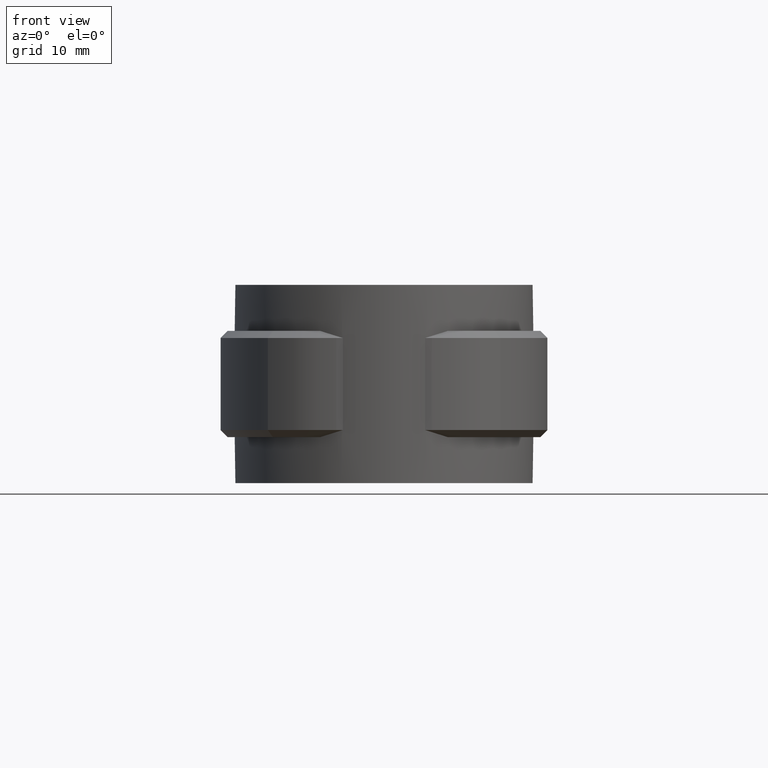
[diagram: clean part render]
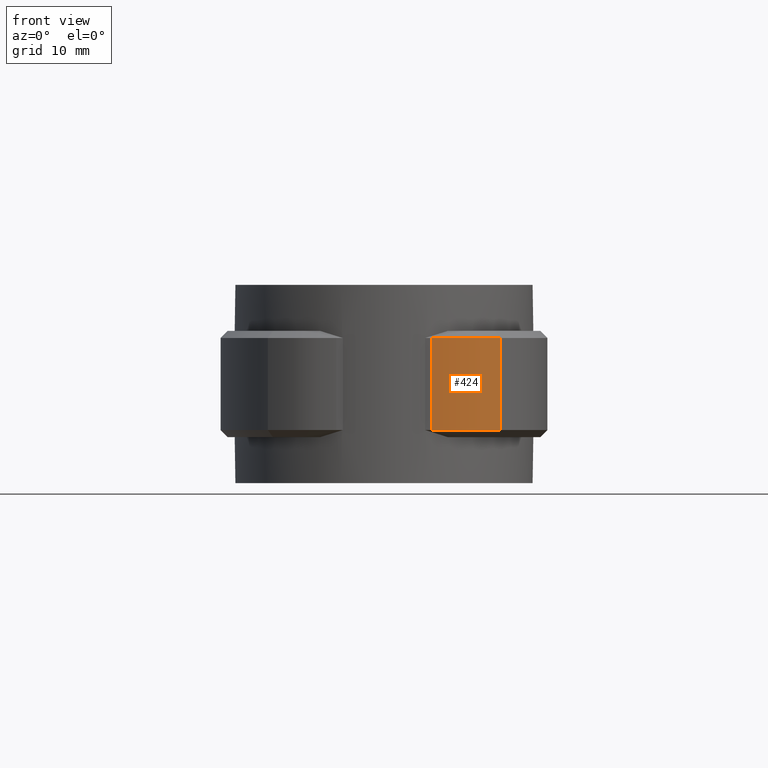
[diagram: same view with one face highlighted and labeled with its STEP entity id]
A machine part, front view. The second image highlights one B-rep face of the part: STEP entity #424.
In plain terms, the highlighted cylindrical surface (partial cylindrical patch) has radius 13.6 mm, axis along (0, 0, -1).
Its self-contained STEP definition (entity closure, byte-faithful):
#424 = ADVANCED_FACE( '', ( #740 ), #741, .T. );
#740 = FACE_OUTER_BOUND( '', #1538, .T. );
#741 = CYLINDRICAL_SURFACE( '', #1539, 13.6000000000000 );
#1538 = EDGE_LOOP( '', ( #3363, #3364, #3365, #3366 ) );
#1539 = AXIS2_PLACEMENT_3D( '', #3367, #3368, #3369 );
#3363 = ORIENTED_EDGE( '', *, *, #4329, .T. );
#3364 = ORIENTED_EDGE( '', *, *, #4327, .T. );
#3365 = ORIENTED_EDGE( '', *, *, #4330, .F. );
#3366 = ORIENTED_EDGE( '', *, *, #4318, .T. );
#3367 = CARTESIAN_POINT( '', ( 6.74778667416212, -6.68000000000001, -20.0000000000000 ) );
#3368 = DIRECTION( '', ( 0.000000000000000, 0.000000000000000, -1.00000000000000 ) );
#3369 = DIRECTION( '', ( 0.275275955036381, 0.961365252429485, 0.000000000000000 ) );
#4318 = EDGE_CURVE( '', #5055, #5059, #5061, .T. );
#4327 = EDGE_CURVE( '', #5070, #5065, #5073, .F. );
#4329 = EDGE_CURVE( '', #5059, #5070, #5075, .T. );
#4330 = EDGE_CURVE( '', #5055, #5065, #5076, .T. );
#5055 = VERTEX_POINT( '', #7562 );
#5059 = VERTEX_POINT( '', #7568 );
#5061 = CIRCLE( '', #7571, 13.6000000000000 );
#5065 = VERTEX_POINT( '', #7575 );
#5070 = VERTEX_POINT( '', #7582 );
#5073 = CIRCLE( '', #7586, 13.6000000000000 );
#5075 = LINE( '', #7588, #7589 );
#5076 = LINE( '', #7590, #7591 );
#7562 = CARTESIAN_POINT( '', ( 6.74778667416212, -20.2800000000000, -19.0000000000000 ) );
#7568 = CARTESIAN_POINT( '', ( 16.4128629004502, -16.2479831490258, -19.0000000000000 ) );
#7571 = AXIS2_PLACEMENT_3D( '', #8444, #8445, #8446 );
#7575 = CARTESIAN_POINT( '', ( 6.74778667416212, -20.2800000000000, -6.00000000000001 ) );
#7582 = CARTESIAN_POINT( '', ( 16.4128629004502, -16.2479831490258, -6.00000000000001 ) );
#7586 = AXIS2_PLACEMENT_3D( '', #8465, #8466, #8467 );
#7588 = CARTESIAN_POINT( '', ( 16.4128629004502, -16.2479831490258, -20.0000000000000 ) );
#7589 = VECTOR( '', #8471, 1000.00000000000 );
#7590 = CARTESIAN_POINT( '', ( 6.74778667416212, -20.2800000000000, -20.0000000000000 ) );
#7591 = VECTOR( '', #8472, 1000.00000000000 );
#8444 = CARTESIAN_POINT( '', ( 6.74778667416212, -6.68000000000001, -19.0000000000000 ) );
#8445 = DIRECTION( '', ( 0.000000000000000, 0.000000000000000, 1.00000000000000 ) );
#8446 = DIRECTION( '', ( 1.00000000000000, 0.000000000000000, 0.000000000000000 ) );
#8465 = CARTESIAN_POINT( '', ( 6.74778667416212, -6.68000000000001, -6.00000000000000 ) );
#8466 = DIRECTION( '', ( 0.000000000000000, 0.000000000000000, 1.00000000000000 ) );
#8467 = DIRECTION( '', ( 1.00000000000000, 0.000000000000000, 0.000000000000000 ) );
#8471 = DIRECTION( '', ( 0.000000000000000, 0.000000000000000, 1.00000000000000 ) );
#8472 = DIRECTION( '', ( 0.000000000000000, 0.000000000000000, 1.00000000000000 ) );